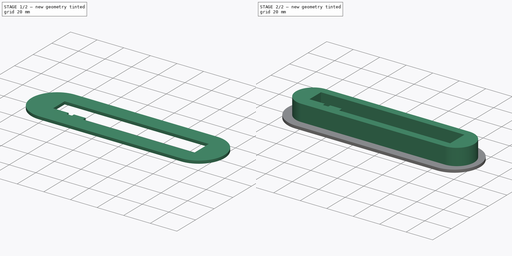
[diagram: build sequence overview — one tinted view per stage of 2, left to right]
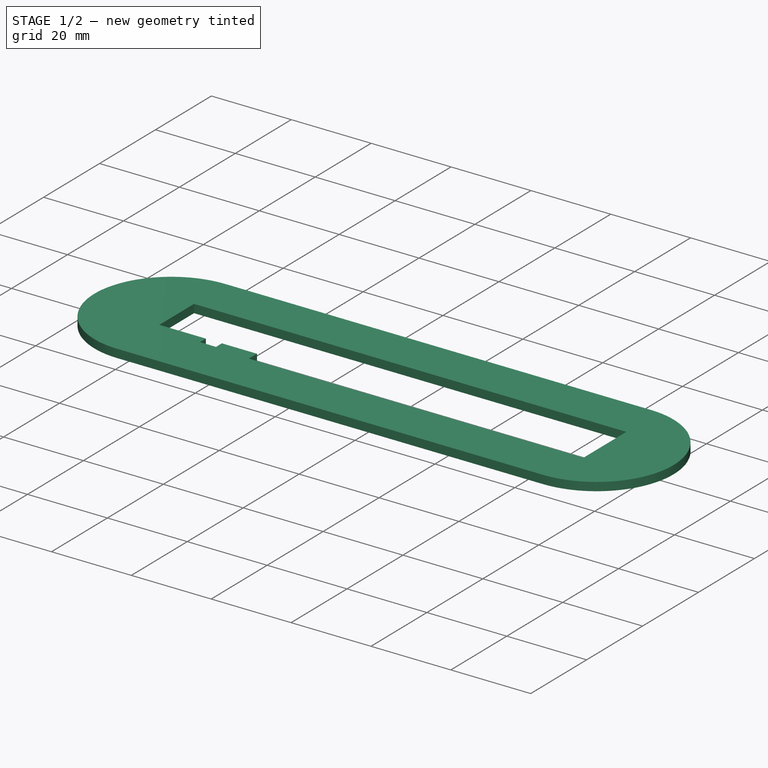
[diagram: stage 1 of 2 — iso view after this stage's code; geometry added in this stage tinted green]
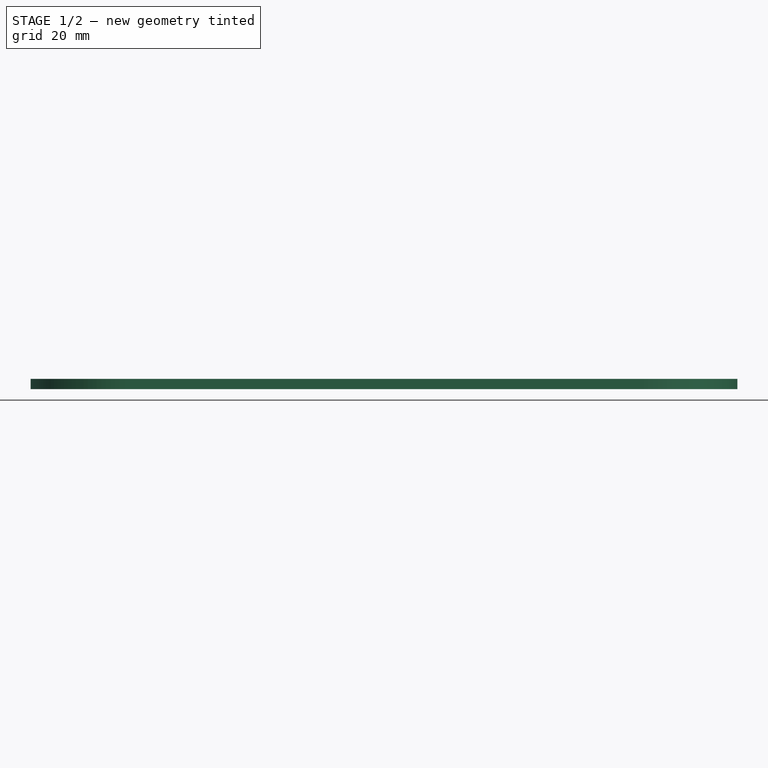
[diagram: stage 1 of 2 — front view after this stage's code; geometry added in this stage tinted green]
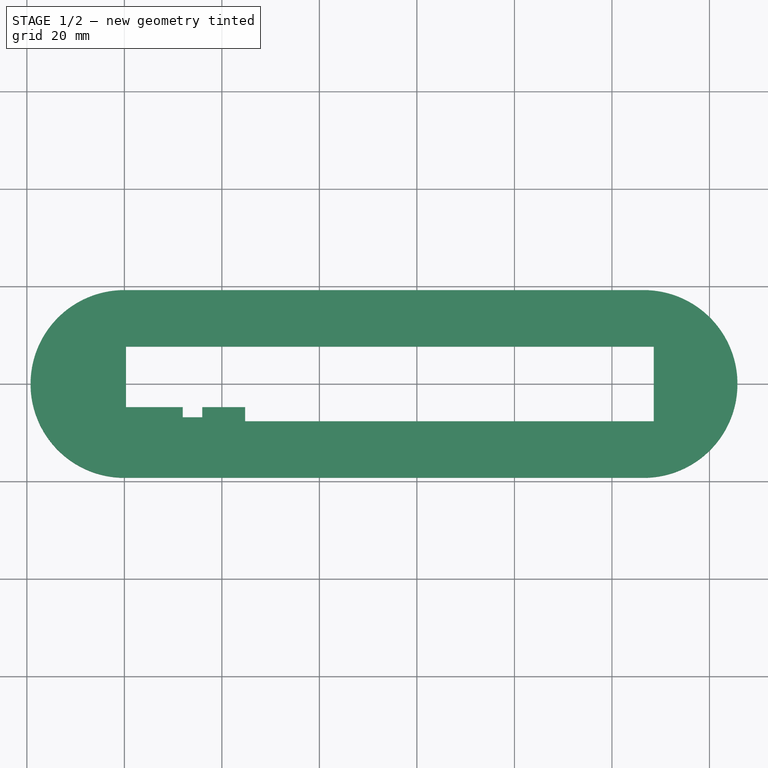
[diagram: stage 1 of 2 — top view after this stage's code; geometry added in this stage tinted green]
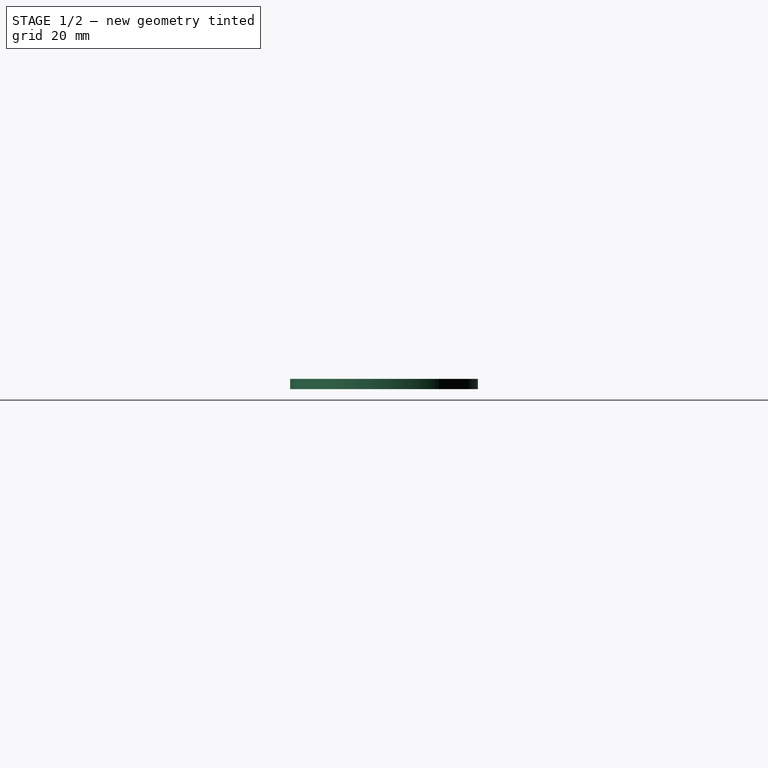
[diagram: stage 1 of 2 — right view after this stage's code; geometry added in this stage tinted green]
FCSTD DOCUMENT  (FreeCAD 1.0RUnknown)
Label: liftgate-wiring-harness
License: All rights reserved
LicenseURL: https://en.wikipedia.org/wiki/All_rights_reserved
objects: Sketcher::SketchObject×3, PartDesign::Pad×2, PartDesign::Pocket×1, PartDesign::Body×1
note: 16 computed .brp shape members not serialized (recipe doc carries the construction recipe); baked Part::Feature solids carry a one-line shape summary decoded from their .brp

FEATURE [Sketcher::SketchObject] Sketch
  ArcFitTolerance = 1e-06
  AttachmentSupport = -> [XY_Plane]
  FullyConstrained = true
  MakeInternals = false
  MapMode = 5
  sketch-geometry (4):
    g0: ArcOfCircle CenterX=0 CenterY=0 CenterZ=0 NormalX=0 NormalY=0 NormalZ=1 AngleXU=0 Radius=19.25 StartAngle=1.5708 EndAngle=4.71239
    g1: ArcOfCircle CenterX=106.5 CenterY=6e-16 CenterZ=0 NormalX=0 NormalY=0 NormalZ=1 AngleXU=0 Radius=19.25 StartAngle=4.71239 EndAngle=7.85398
    g2: LineSegment StartX=-3.1e-15 StartY=19.25 StartZ=0 EndX=106.5 EndY=19.25 EndZ=0
    g3: LineSegment StartX=-3.5e-15 StartY=-19.25 StartZ=0 EndX=106.5 EndY=-19.25 EndZ=0
  constraints (9):
    c: Tangent(g0,g2) = 1.5708
    c: Tangent(g0,g3) = -1.5708
    c: Tangent(g1,g2) = 1.5708
    c: Tangent(g1,g3) = -1.5708
    c: Equal(g0,g1)
    c: Horizontal(g3)
    c: Radius(g0) = 19.25
    c: Coincident(g0,g-1)
    c: DistanceX(g0,g1) = 106.5
FEATURE [PartDesign::Pad] Pad
  Direction = (0,0,1)
  Length = 2.1
  Length2 = 10
  Profile = -> Sketch
  ReferenceAxis = -> Sketch [N_Axis]
  Refine = true
  Suppressed = false
  Type = 0
FEATURE [Sketcher::SketchObject] Sketch001
  ArcFitTolerance = 1e-06
  AttachmentSupport = -> [Pad]
  FullyConstrained = false
  MakeInternals = false
  MapMode = 5
  Placement = pos=(0,0,2.1) rot=(0,0,1;0rad)
  sketch-geometry (15):
    g0: ArcOfCircle [constr] CenterX=0 CenterY=0 CenterZ=0 NormalX=0 NormalY=0 NormalZ=1 AngleXU=0 Radius=13.125 StartAngle=1.5708 EndAngle=4.71239
    g1: ArcOfCircle [constr] CenterX=106.25 CenterY=8e-16 CenterZ=0 NormalX=0 NormalY=0 NormalZ=1 AngleXU=0 Radius=13.125 StartAngle=4.71239 EndAngle=7.85398
    g2: LineSegment [constr] StartX=-2.1e-15 StartY=13.125 StartZ=0 EndX=106.25 EndY=13.125 EndZ=0
    g3: LineSegment [constr] StartX=-2.4e-15 StartY=-13.125 StartZ=0 EndX=106.25 EndY=-13.125 EndZ=0
    g4: LineSegment StartX=0.325 StartY=7.65 StartZ=0 EndX=108.575 EndY=7.65 EndZ=0
    g5: LineSegment StartX=108.575 StartY=7.65 StartZ=0 EndX=108.575 EndY=-7.65 EndZ=0
    g6: LineSegment StartX=108.575 StartY=-7.65 StartZ=0 EndX=24.775 EndY=-7.65 EndZ=0
    g7: LineSegment StartX=24.775 StartY=-7.65 StartZ=0 EndX=24.775 EndY=-4.75 EndZ=0
    g8: LineSegment StartX=24.775 StartY=-4.75 StartZ=0 EndX=15.975 EndY=-4.75 EndZ=0
    g9: LineSegment StartX=15.975 StartY=-4.75 StartZ=0 EndX=15.975 EndY=-6.85 EndZ=0
    g10: LineSegment StartX=15.975 StartY=-6.85 StartZ=0 EndX=11.975 EndY=-6.85 EndZ=0
    g11: LineSegment StartX=11.975 StartY=-6.85 StartZ=0 EndX=11.975 EndY=-4.75 EndZ=0
    g12: LineSegment StartX=11.975 StartY=-4.75 StartZ=0 EndX=0.325 EndY=-4.75 EndZ=0
    g13: LineSegment StartX=0.325 StartY=-4.75 StartZ=0 EndX=0.325 EndY=7.65 EndZ=0
    g14: GeomPoint [constr] X=119.375 Y=8e-16 Z=0
  constraints (39):
    c: Tangent(g0,g2) = 1.5708
    c: Tangent(g0,g3) = -1.5708
    c: Tangent(g1,g2) = 1.5708
    c: Tangent(g1,g3) = -1.5708
    c: Equal(g0,g1)
    c: Horizontal(g3)
    c: Radius(g0) = 13.125
    c: Coincident(g0,g-1)
    c: DistanceX(g0,g1) = 106.25
    c: Horizontal(g4)
    c: Coincident(g4,g5)
    c: Coincident(g5,g6)
    c: Horizontal(g6)
    c: Coincident(g6,g7)
    c: Coincident(g7,g8)
    c: Coincident(g8,g9)
    c: Vertical(g9)
    c: Coincident(g9,g10)
    c: Horizontal(g10)
    c: Coincident(g10,g11)
    c: Coincident(g11,g12)
    c: Coincident(g12,g13)
    c: Coincident(g13,g4)
    c: Vertical(g13)
    c: Horizontal(g12)
    c: Vertical(g11)
    c: Vertical(g7)
    c: Horizontal(g8)
    c: DistanceX(g4,g4) = 108.25
    c: Distance(g5,g7) = 83.8
    c: Horizontal(g8,g11)
    c: DistanceX(g8,g8) = 8.8
    c: DistanceY(g5,g5) = 15.3
    c: Symmetric(g4,g5,g-1)
    c: PointOnObject(g14,g1)
    c: Distance(g14,g5) = 10.8
    c: Distance(g10,g10) = 4
    c: DistanceY(g13,g13) = 12.4
    c: Distance(g4,g10) = 14.5
FEATURE [PartDesign::Pocket] Pocket
  BaseFeature = -> Pad
  Direction = (0,0,-1)
  Length = 5
  Length2 = 5
  Profile = -> Sketch001
  ReferenceAxis = -> Sketch001 [N_Axis]
  Refine = true
  Suppressed = false
  Type = 0
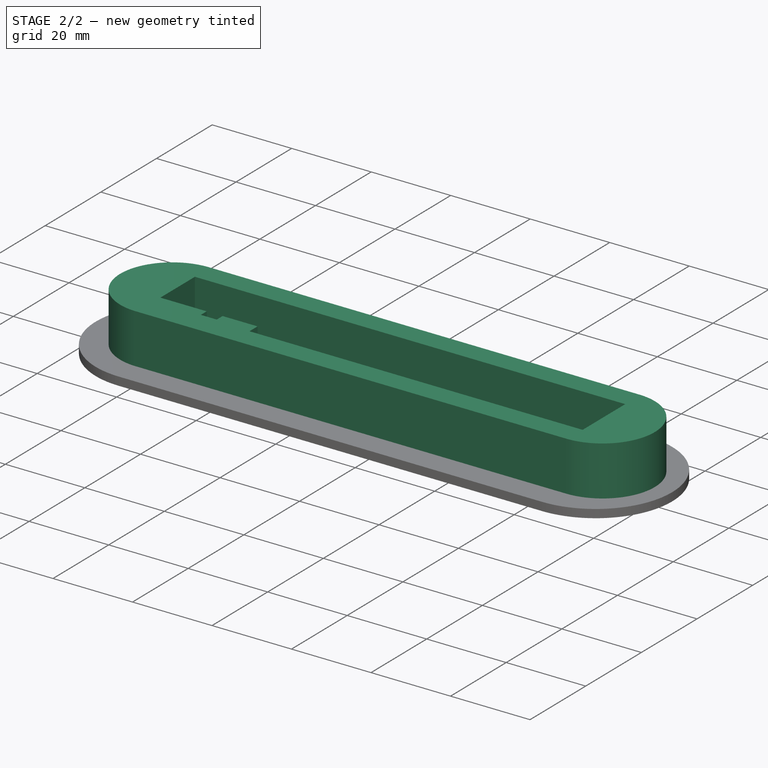
[diagram: stage 2 of 2 — iso view after this stage's code; geometry added in this stage tinted green]
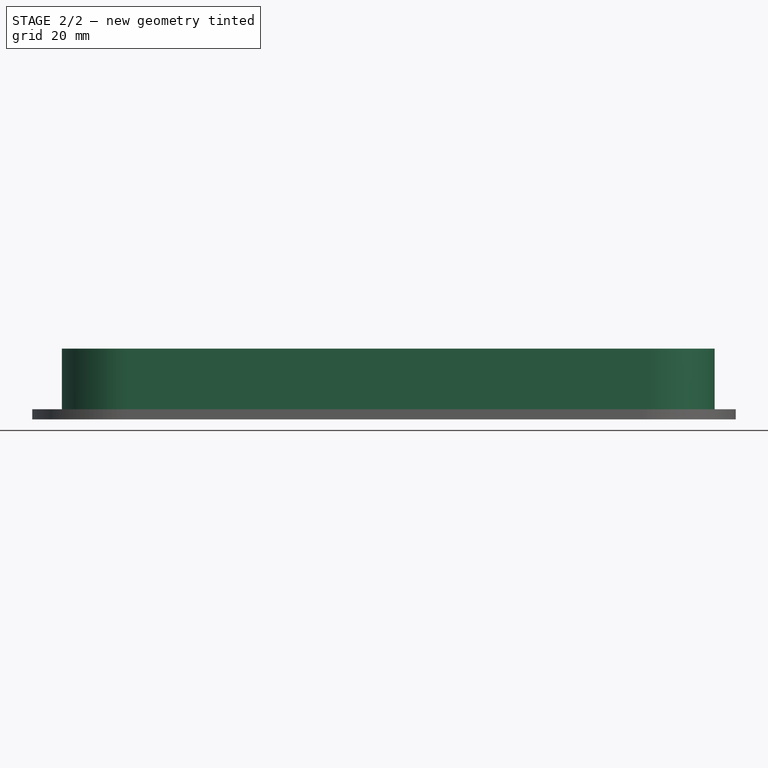
[diagram: stage 2 of 2 — front view after this stage's code; geometry added in this stage tinted green]
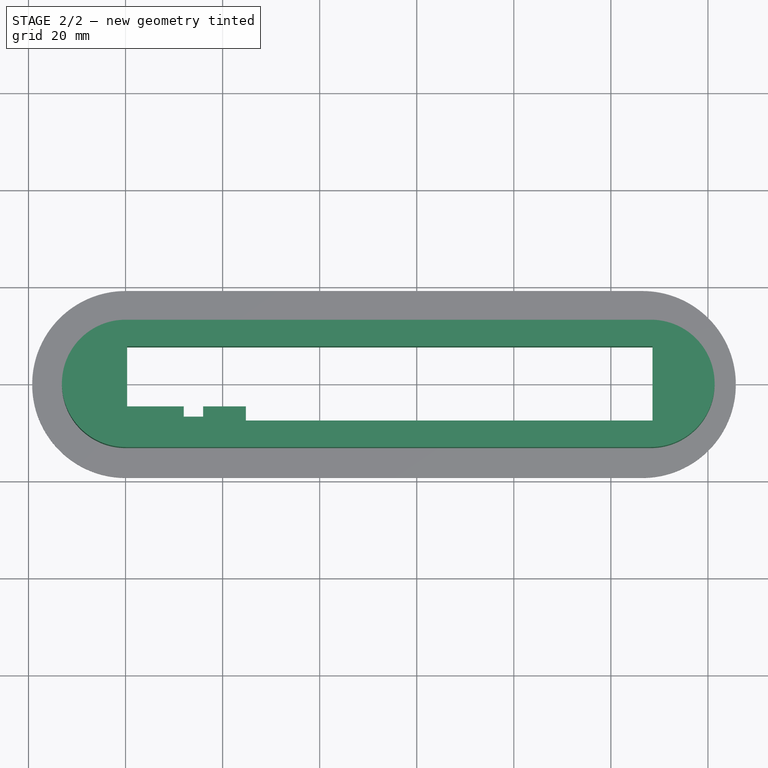
[diagram: stage 2 of 2 — top view after this stage's code; geometry added in this stage tinted green]
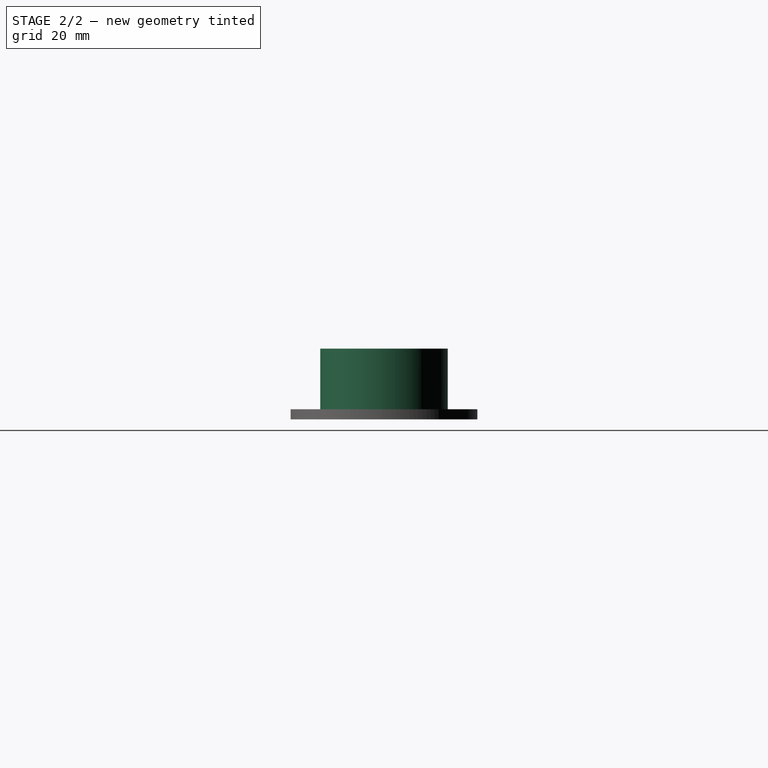
[diagram: stage 2 of 2 — right view after this stage's code; geometry added in this stage tinted green]
FEATURE [Sketcher::SketchObject] Sketch002
  ArcFitTolerance = 1e-06
  AttachmentSupport = -> [Pocket]
  ExternalGeometry = -> [Pocket]
  FullyConstrained = true
  MakeInternals = false
  MapMode = 5
  Placement = pos=(0,0,2.1) rot=(0,0,1;0rad)
  sketch-geometry (14):
    g0: ArcOfCircle CenterX=0 CenterY=0 CenterZ=0 NormalX=0 NormalY=0 NormalZ=1 AngleXU=0 Radius=13.125 StartAngle=1.5708 EndAngle=4.71239
    g1: ArcOfCircle CenterX=108.25 CenterY=5e-16 CenterZ=0 NormalX=0 NormalY=0 NormalZ=1 AngleXU=0 Radius=13.125 StartAngle=4.71239 EndAngle=7.85398
    g2: LineSegment StartX=8e-16 StartY=13.125 StartZ=0 EndX=108.25 EndY=13.125 EndZ=0
    g3: LineSegment StartX=-2.4e-15 StartY=-13.125 StartZ=0 EndX=108.25 EndY=-13.125 EndZ=0
    g4: LineSegment StartX=0.325 StartY=7.65 StartZ=0 EndX=0.325 EndY=-4.75 EndZ=0
    g5: LineSegment StartX=0.325 StartY=-4.75 StartZ=0 EndX=11.975 EndY=-4.75 EndZ=0
    g6: LineSegment StartX=11.975 StartY=-4.75 StartZ=0 EndX=11.975 EndY=-6.85 EndZ=0
    g7: LineSegment StartX=11.975 StartY=-6.85 StartZ=0 EndX=15.975 EndY=-6.85 EndZ=0
    g8: LineSegment StartX=15.975 StartY=-6.85 StartZ=0 EndX=15.975 EndY=-4.75 EndZ=0
    g9: LineSegment StartX=15.975 StartY=-4.75 StartZ=0 EndX=24.775 EndY=-4.75 EndZ=0
    g10: LineSegment StartX=24.775 StartY=-4.75 StartZ=0 EndX=24.775 EndY=-7.65 EndZ=0
    g11: LineSegment StartX=24.775 StartY=-7.65 StartZ=0 EndX=108.575 EndY=-7.65 EndZ=0
    g12: LineSegment StartX=108.575 StartY=-7.65 StartZ=0 EndX=108.575 EndY=7.65 EndZ=0
    g13: LineSegment StartX=108.575 StartY=7.65 StartZ=0 EndX=0.325 EndY=7.65 EndZ=0
  constraints (29):
    c: Tangent(g0,g2) = 1.5708
    c: Tangent(g0,g3) = -1.5708
    c: Tangent(g1,g2) = 1.5708
    c: Tangent(g1,g3) = -1.5708
    c: Equal(g0,g1)
    c: Horizontal(g3)
    c: Radius(g0) = 13.125
    c: DistanceX(g0,g1) = 108.25
    c: Coincident(g0,g-1)
    c: Coincident(g-4,g4)
    c: Coincident(g4,g-5)
    c: Coincident(g4,g5)
    c: Coincident(g5,g-6)
    c: Coincident(g5,g6)
    c: Coincident(g6,g-7)
    c: Coincident(g6,g7)
    c: Coincident(g7,g-8)
    c: Coincident(g7,g8)
    c: Coincident(g8,g-9)
    c: Coincident(g8,g9)
    c: Coincident(g9,g-10)
    c: Coincident(g9,g10)
    c: Coincident(g10,g-11)
    c: Coincident(g10,g11)
    c: Coincident(g11,g-12)
    c: Coincident(g11,g12)
    c: Coincident(g12,g-12)
    c: Coincident(g12,g13)
    c: Coincident(g13,g4)
FEATURE [PartDesign::Pad] Pad001
  BaseFeature = -> Pocket
  Direction = (0,0,1)
  Length = 12.5
  Length2 = 10
  Profile = -> Sketch002
  ReferenceAxis = -> Sketch002 [N_Axis]
  Refine = true
  Suppressed = false
  Type = 0
FEATURE [PartDesign::Body] Body
  AllowCompound = false
  Group = -> [Sketch,Pad,Sketch001,Pocket,Sketch002,Pad001]
  Origin = -> Origin
  Tip = -> Pad001
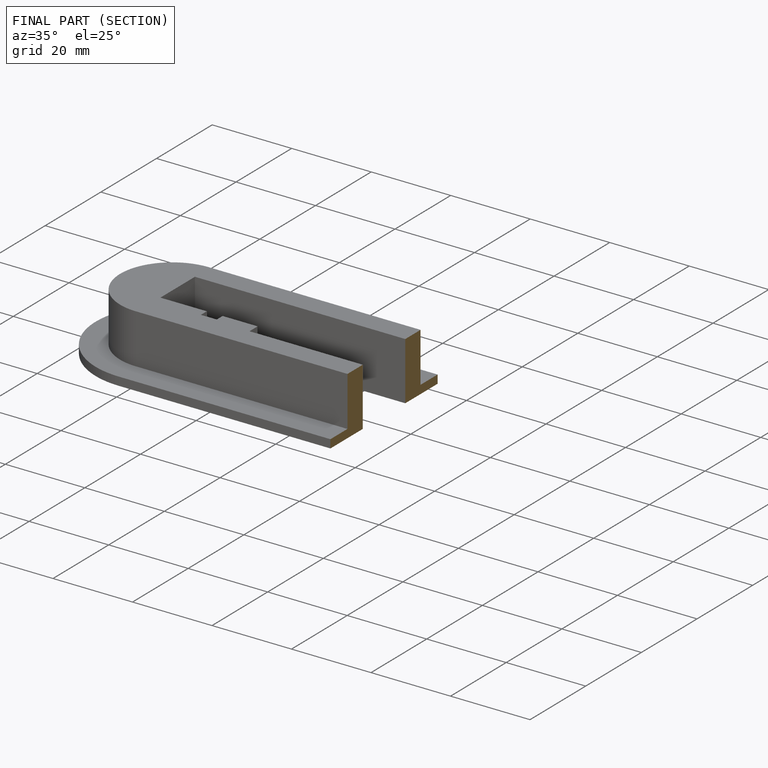
[diagram: finished part — half-section view (interior)]
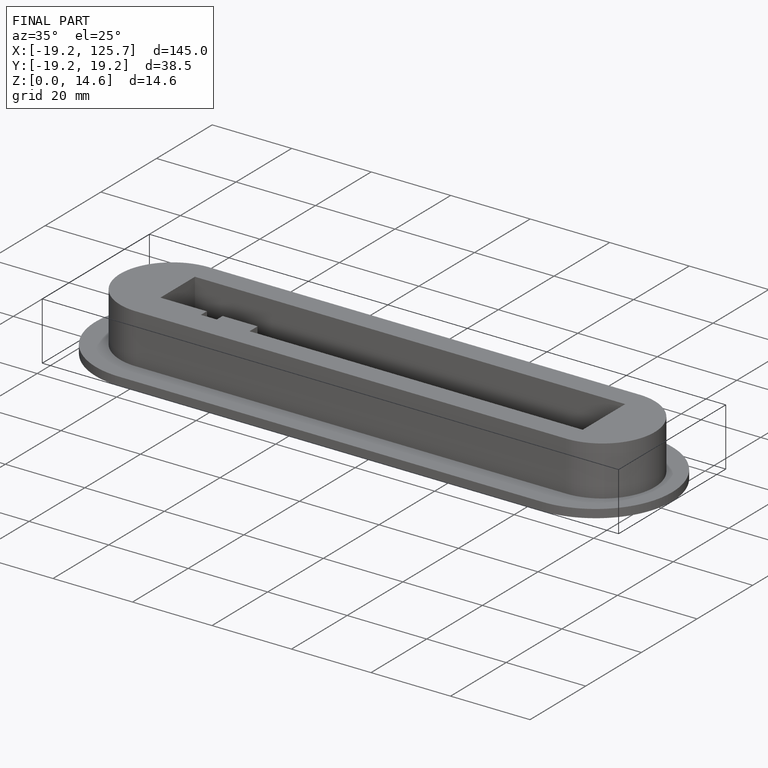
[diagram: finished part — iso view with bounding-box wireframe]
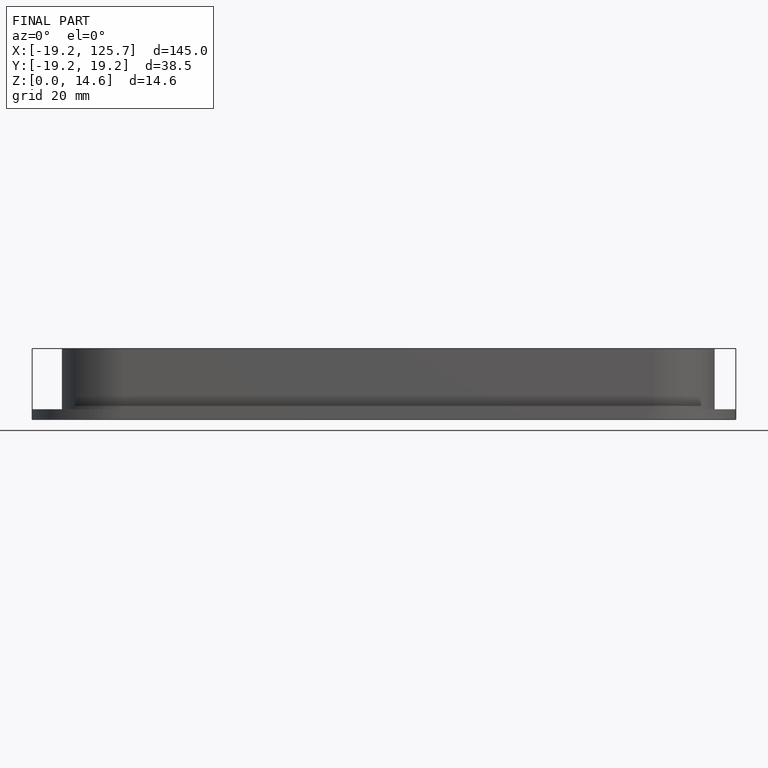
[diagram: finished part — front view with bounding-box wireframe]
